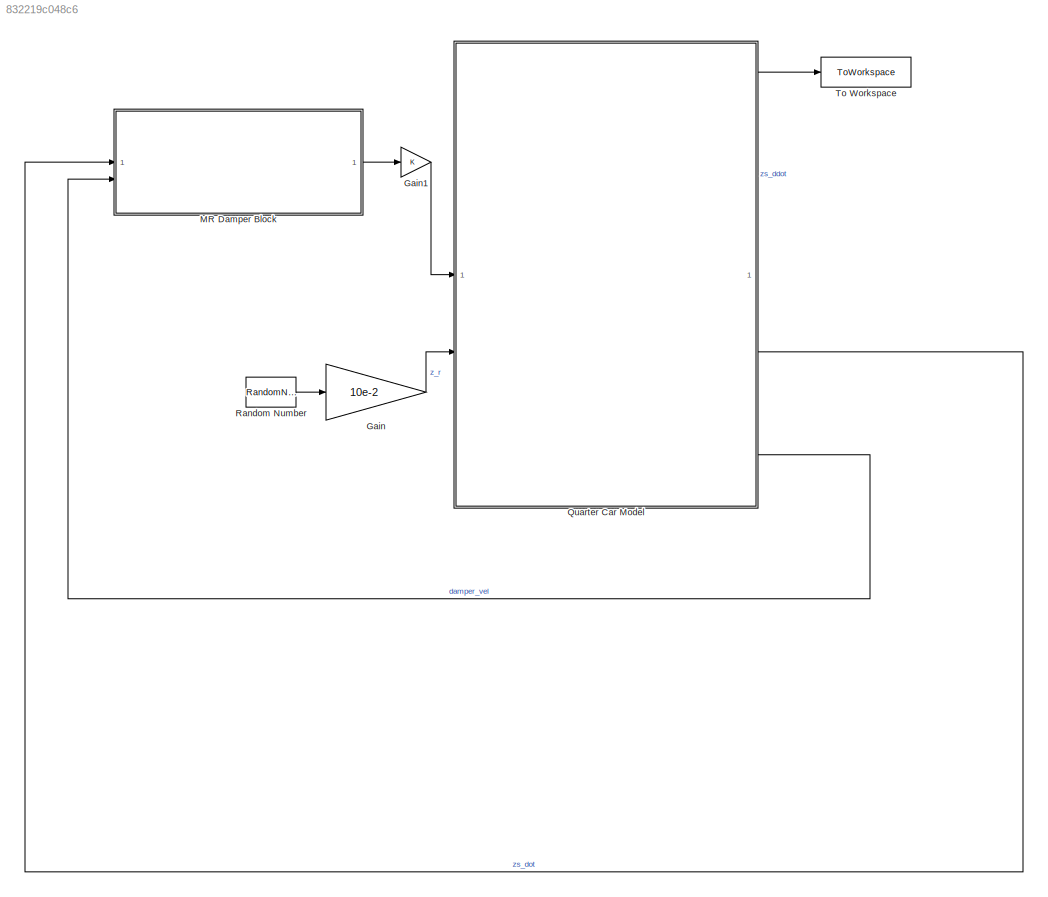
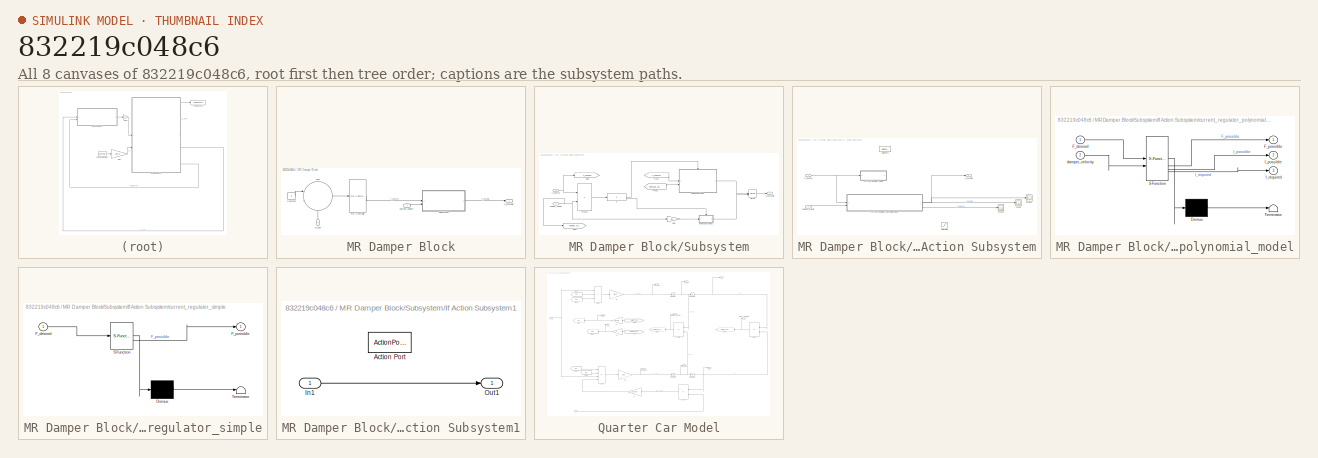
[diagram: thumbnail index - all 8 canvases of the model, root first then tree order]
MODEL slx_832219c048c6
KIND model
CONFIG AbsTol = auto
CONFIG EnableMultiTasking = off
CONFIG FixedStep = auto
CONFIG MaxStep = auto
CONFIG MinStep = auto
CONFIG RelTol = 1e-3
CONFIG SampleTimeConstraint = Unconstrained
CONFIG SolverName = ode1be
CONFIG StartTime = 0.0
CONFIG StopTime = 10
BLOCK [Gain] Gain
  Gain = 10e-2
BLOCK [Gain] Gain1
BLOCK [SubSystem] MR Damper Block
BLOCK [Constant] MR Damper Block/Constant
  Value = 0
BLOCK [Outport] MR Damper Block/F_possoble
BLOCK [Reference] MR Damper Block/PID Controller  REF=slpidlib/PID Controller
  LibrarySourceBlock = simulink/Continuous/PID Controller
  SourceBlock = slpidlib/PID Controller
  SourceType = PID 1dof
BLOCK [SubSystem] MR Damper Block/Subsystem
BLOCK [Inport] MR Damper Block/Subsystem/F_desired
BLOCK [Outport] MR Damper Block/Subsystem/F_possoble
BLOCK [From] MR Damper Block/Subsystem/From
  GotoTag = F_desired
BLOCK [From] MR Damper Block/Subsystem/From1
  GotoTag = damper_velocity
BLOCK [Gain] MR Damper Block/Subsystem/Gain
  Gain = 50
BLOCK [Goto] MR Damper Block/Subsystem/Goto
  GotoTag = F_desired
BLOCK [Goto] MR Damper Block/Subsystem/Goto1
  GotoTag = damper_velocity
BLOCK [If] MR Damper Block/Subsystem/If
BLOCK [SubSystem] MR Damper Block/Subsystem/If Action Subsystem
  TreatAsAtomicUnit = on
BLOCK [ActionPort] MR Damper Block/Subsystem/If Action Subsystem/Action Port
  ActionPortLabel = if(u1 > 0)
BLOCK [Inport] MR Damper Block/Subsystem/If Action Subsystem/F_desired
BLOCK [Outport] MR Damper Block/Subsystem/If Action Subsystem/F_possible
BLOCK [Saturate] MR Damper Block/Subsystem/If Action Subsystem/Saturation
  LowerLimit = -2000
  UpperLimit = 2000
BLOCK [Scope] MR Damper Block/Subsystem/If Action Subsystem/Scope
  Floating = off
  NumInputPorts = 1
  ScopeSpecificationString = Simulink.scopes.TimeScopeBlockCfg('CurrentConfiguration', extmgr.ConfigurationSet(extmgr.Configuration('Core','General UI',true),extmgr.Configuration('Core','Source UI',true),extmgr.Configuration('Sources','WiredSimulink',true),extmgr.Configuration('Visuals','Time Domain',true,'SerializedDisplays',{struct('MinYLimReal','-0.06229','MaxYLimReal','0.56248','YLabelReal','','MinYLimMag','0.00000','MaxY...<+1389ch>
BLOCK [Scope] MR Damper Block/Subsystem/If Action Subsystem/Scope1
  Floating = off
  NumInputPorts = 1
  ScopeSpecificationString = Simulink.scopes.TimeScopeBlockCfg('CurrentConfiguration', extmgr.ConfigurationSet(extmgr.Configuration('Core','General UI',true),extmgr.Configuration('Core','Source UI',true),extmgr.Configuration('Sources','WiredSimulink',true,'DataLoggingVariableName','ScopeData1'),extmgr.Configuration('Visuals','Time Domain',true,'SerializedDisplays',{struct('MinYLimReal','-9771.5132','MaxYLimReal','10644.41896'...<+1457ch>
BLOCK [Scope] MR Damper Block/Subsystem/If Action Subsystem/Scope2
  Floating = off
  NumInputPorts = 1
  ScopeSpecificationString = Simulink.scopes.TimeScopeBlockCfg('CurrentConfiguration', extmgr.ConfigurationSet(extmgr.Configuration('Core','General UI',true),extmgr.Configuration('Core','Source UI',true),extmgr.Configuration('Sources','WiredSimulink',true,'DataLoggingVariableName','ScopeData2'),extmgr.Configuration('Visuals','Time Domain',true,'SerializedDisplays',{struct('MinYLimReal','-2.93128','MaxYLimReal','26.38331','YLa...<+1433ch>
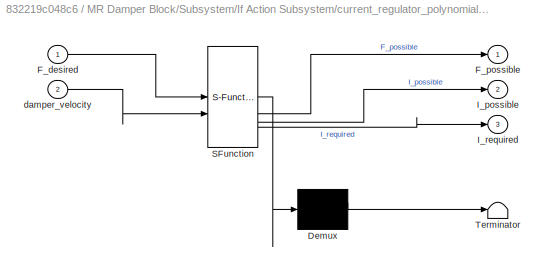
BLOCK [SubSystem] MR Damper Block/Subsystem/If Action Subsystem/current_regulator_polynomial_model
  ErrorFcn = Stateflow.Translate.translate
  LibrarySourceBlock = simulink/User-Defined\nFunctions/MATLAB Function
  PermitHierarchicalResolution = ExplicitOnly
  SFBlockType = MATLAB Function
  TreatAsAtomicUnit = on
BLOCK [Demux] MR Damper Block/Subsystem/If Action Subsystem/current_regulator_polynomial_model/ Demux 
  Outputs = 1
BLOCK [S-Function] MR Damper Block/Subsystem/If Action Subsystem/current_regulator_polynomial_model/ SFunction 
  EnableBusSupport = on
  FunctionName = sf_sfun
  PortCounts = [2 4]
  SFcnIsStateOwnerBlock = off
  SFunctionDeploymentMode = off
  Tag = Stateflow S-Function 1
BLOCK [Terminator] MR Damper Block/Subsystem/If Action Subsystem/current_regulator_polynomial_model/ Terminator 
BLOCK [Inport] MR Damper Block/Subsystem/If Action Subsystem/current_regulator_polynomial_model/F_desired
BLOCK [Outport] MR Damper Block/Subsystem/If Action Subsystem/current_regulator_polynomial_model/F_possible
BLOCK [Outport] MR Damper Block/Subsystem/If Action Subsystem/current_regulator_polynomial_model/I_possible
  Port = 2
BLOCK [Outport] MR Damper Block/Subsystem/If Action Subsystem/current_regulator_polynomial_model/I_required
  Port = 3
BLOCK [Inport] MR Damper Block/Subsystem/If Action Subsystem/current_regulator_polynomial_model/damper_velocity
  Port = 2
BLOCK [SubSystem] MR Damper Block/Subsystem/If Action Subsystem/current_regulator_simple
  ErrorFcn = Stateflow.Translate.translate
  LibrarySourceBlock = simulink/User-Defined\nFunctions/MATLAB Function
  PermitHierarchicalResolution = ExplicitOnly
  SFBlockType = MATLAB Function
  TreatAsAtomicUnit = on
BLOCK [Demux] MR Damper Block/Subsystem/If Action Subsystem/current_regulator_simple/ Demux 
  Outputs = 1
BLOCK [S-Function] MR Damper Block/Subsystem/If Action Subsystem/current_regulator_simple/ SFunction 
  EnableBusSupport = on
  FunctionName = sf_sfun
  PortCounts = [1 2]
  SFcnIsStateOwnerBlock = off
  SFunctionDeploymentMode = off
  Tag = Stateflow S-Function 2
BLOCK [Terminator] MR Damper Block/Subsystem/If Action Subsystem/current_regulator_simple/ Terminator 
BLOCK [Inport] MR Damper Block/Subsystem/If Action Subsystem/current_regulator_simple/F_desired
BLOCK [Outport] MR Damper Block/Subsystem/If Action Subsystem/current_regulator_simple/F_possible
BLOCK [Inport] MR Damper Block/Subsystem/If Action Subsystem/damper_velocity
  Port = 2
BLOCK [SubSystem] MR Damper Block/Subsystem/If Action Subsystem1
  TreatAsAtomicUnit = on
BLOCK [ActionPort] MR Damper Block/Subsystem/If Action Subsystem1/Action Port
  ActionPortLabel = else
BLOCK [Inport] MR Damper Block/Subsystem/If Action Subsystem1/In1
BLOCK [Outport] MR Damper Block/Subsystem/If Action Subsystem1/Out1
BLOCK [Merge] MR Damper Block/Subsystem/Merge
BLOCK [Product] MR Damper Block/Subsystem/Product
BLOCK [Inport] MR Damper Block/Subsystem/damper_velocity
  Port = 2
BLOCK [Sum] MR Damper Block/Sum
  Inputs = |+-
BLOCK [Inport] MR Damper Block/damper_velocity
  Port = 2
BLOCK [Inport] MR Damper Block/zs_dot
  NameLocation = right
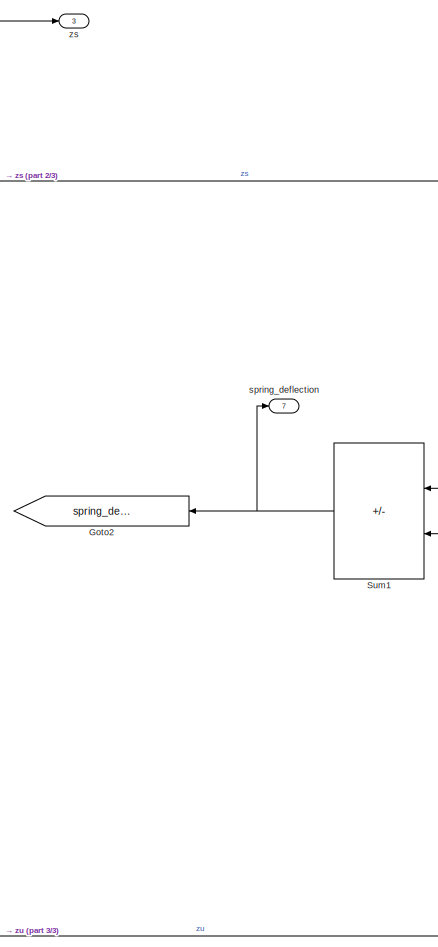
[diagram: Quarter Car Model - part 1/3, middle right region]
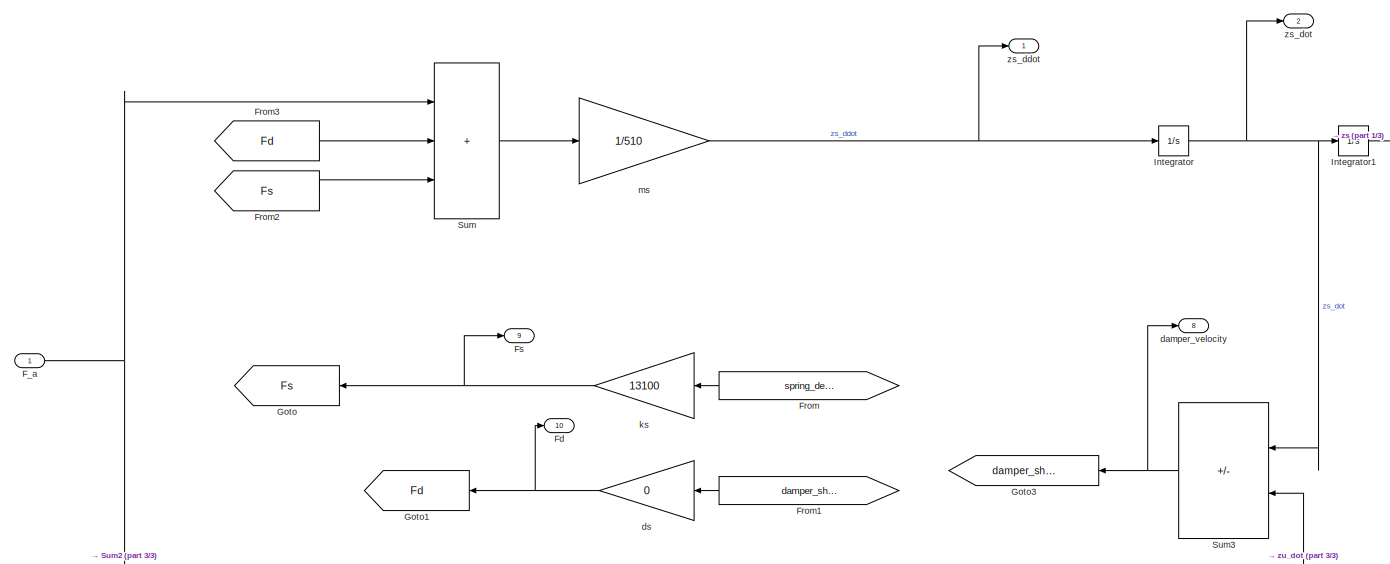
[diagram: Quarter Car Model - part 2/3, top center region]
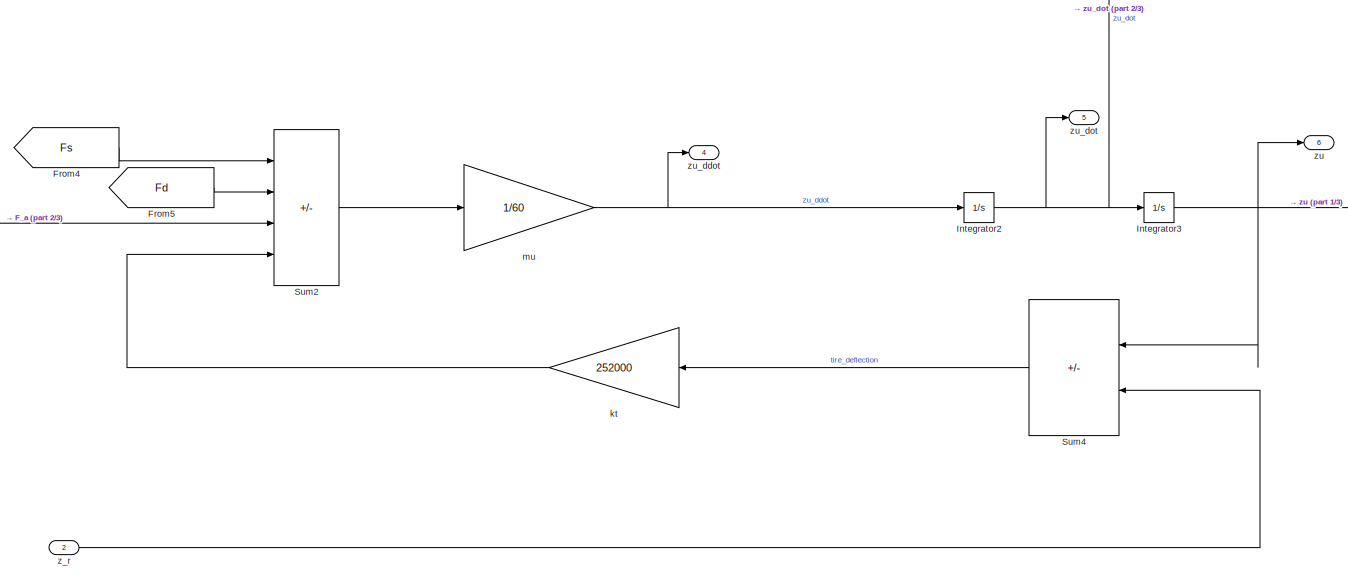
[diagram: Quarter Car Model - part 3/3, bottom center region]
BLOCK [SubSystem] Quarter Car Model
BLOCK [Inport] Quarter Car Model/F_a
BLOCK [Outport] Quarter Car Model/Fd
  Port = 10
BLOCK [From] Quarter Car Model/From
  GotoTag = spring_deflection
  NameLocation = top
BLOCK [From] Quarter Car Model/From1
  GotoTag = damper_shaft_velocity
  NameLocation = top
BLOCK [From] Quarter Car Model/From2
  GotoTag = Fs
BLOCK [From] Quarter Car Model/From3
  GotoTag = Fd
  NameLocation = top
BLOCK [From] Quarter Car Model/From4
  GotoTag = Fs
BLOCK [From] Quarter Car Model/From5
  GotoTag = Fd
  NameLocation = top
BLOCK [Outport] Quarter Car Model/Fs
  Port = 9
BLOCK [Goto] Quarter Car Model/Goto
  GotoTag = Fs
  NameLocation = top
BLOCK [Goto] Quarter Car Model/Goto1
  GotoTag = Fd
  NameLocation = top
BLOCK [Goto] Quarter Car Model/Goto2
  GotoTag = spring_deflection
  NameLocation = top
BLOCK [Goto] Quarter Car Model/Goto3
  GotoTag = damper_shaft_velocity
  NameLocation = top
BLOCK [Integrator] Quarter Car Model/Integrator
BLOCK [Integrator] Quarter Car Model/Integrator1
BLOCK [Integrator] Quarter Car Model/Integrator2
BLOCK [Integrator] Quarter Car Model/Integrator3
BLOCK [Sum] Quarter Car Model/Sum
  IconShape = rectangular
  Inputs = +++
BLOCK [Sum] Quarter Car Model/Sum1
  IconShape = rectangular
  Inputs = |-+
  NameLocation = top
BLOCK [Sum] Quarter Car Model/Sum2
  IconShape = rectangular
  Inputs = ---+
BLOCK [Sum] Quarter Car Model/Sum3
  IconShape = rectangular
  Inputs = |-+
  NameLocation = top
BLOCK [Sum] Quarter Car Model/Sum4
  IconShape = rectangular
  Inputs = |-+
  NameLocation = top
BLOCK [Outport] Quarter Car Model/damper_velocity
  Port = 8
BLOCK [Gain] Quarter Car Model/ds
  Gain = 0
  NameLocation = top
BLOCK [Gain] Quarter Car Model/ks
  Gain = 13100
  NameLocation = top
BLOCK [Gain] Quarter Car Model/kt
  Gain = 252000
  NameLocation = top
BLOCK [Gain] Quarter Car Model/ms
  Gain = 1/510
BLOCK [Gain] Quarter Car Model/mu
  Gain = 1/60
BLOCK [Outport] Quarter Car Model/spring_deflection
  Port = 7
BLOCK [Inport] Quarter Car Model/z_r
  Port = 2
BLOCK [Outport] Quarter Car Model/zs
  Port = 3
BLOCK [Outport] Quarter Car Model/zs_ddot
BLOCK [Outport] Quarter Car Model/zs_dot
  Port = 2
BLOCK [Outport] Quarter Car Model/zu
  Port = 6
BLOCK [Outport] Quarter Car Model/zu_ddot
  Port = 4
BLOCK [Outport] Quarter Car Model/zu_dot
  Port = 5
BLOCK [RandomNumber] Random Number
  SampleTime = 0.01
BLOCK [ToWorkspace] To Workspace
  FixptAsFi = on
  MaxDataPoints = inf
  SampleTime = -1
  SaveFormat = Timeseries
  VariableName = acc
LINE Gain1:1 -> Quarter Car Model:1
LINE Gain:1 -> Quarter Car Model:2
LINE MR Damper Block/Constant:1 -> MR Damper Block/Sum:1
LINE MR Damper Block/PID Controller:1 -> MR Damper Block/Subsystem:1
NET MR Damper Block/Subsystem/F_desired:1 -> MR Damper Block/Subsystem/Goto:1, MR Damper Block/Subsystem/Product:1
LINE MR Damper Block/Subsystem/From1:1 -> MR Damper Block/Subsystem/If Action Subsystem:2
LINE MR Damper Block/Subsystem/From:1 -> MR Damper Block/Subsystem/If Action Subsystem:1
LINE MR Damper Block/Subsystem/Gain:1 -> MR Damper Block/Subsystem/If Action Subsystem1:1
NET MR Damper Block/Subsystem/If Action Subsystem/F_desired:1 -> MR Damper Block/Subsystem/If Action Subsystem/current_regulator_polynomial_model:1, MR Damper Block/Subsystem/If Action Subsystem/current_regulator_simple:1
NET MR Damper Block/Subsystem/If Action Subsystem/current_regulator_polynomial_model:1 -> MR Damper Block/Subsystem/If Action Subsystem/F_possible:1, MR Damper Block/Subsystem/If Action Subsystem/Scope1:1
LINE MR Damper Block/Subsystem/If Action Subsystem/current_regulator_polynomial_model:2 -> MR Damper Block/Subsystem/If Action Subsystem/Scope:1
LINE MR Damper Block/Subsystem/If Action Subsystem/current_regulator_polynomial_model:3 -> MR Damper Block/Subsystem/If Action Subsystem/Scope2:1
LINE MR Damper Block/Subsystem/If Action Subsystem/damper_velocity:1 -> MR Damper Block/Subsystem/If Action Subsystem/current_regulator_polynomial_model:2
LINE MR Damper Block/Subsystem/If Action Subsystem1/In1:1 -> MR Damper Block/Subsystem/If Action Subsystem1/Out1:1
LINE MR Damper Block/Subsystem/If Action Subsystem1:1 -> MR Damper Block/Subsystem/Merge:2
LINE MR Damper Block/Subsystem/If Action Subsystem:1 -> MR Damper Block/Subsystem/Merge:1
LINE MR Damper Block/Subsystem/If:1 -> MR Damper Block/Subsystem/If Action Subsystem:ifaction
LINE MR Damper Block/Subsystem/If:2 -> MR Damper Block/Subsystem/If Action Subsystem1:ifaction
LINE MR Damper Block/Subsystem/Merge:1 -> MR Damper Block/Subsystem/F_possoble:1
LINE MR Damper Block/Subsystem/Product:1 -> MR Damper Block/Subsystem/If:1
NET MR Damper Block/Subsystem/damper_velocity:1 -> MR Damper Block/Subsystem/Gain:1, MR Damper Block/Subsystem/Goto1:1, MR Damper Block/Subsystem/Product:2
LINE MR Damper Block/Subsystem:1 -> MR Damper Block/F_possoble:1
LINE MR Damper Block/Sum:1 -> MR Damper Block/PID Controller:1
LINE MR Damper Block/damper_velocity:1 -> MR Damper Block/Subsystem:2
LINE MR Damper Block/zs_dot:1 -> MR Damper Block/Sum:2
LINE MR Damper Block:1 -> Gain1:1
NET Quarter Car Model/F_a:1 -> Quarter Car Model/Sum2:3, Quarter Car Model/Sum:1
LINE Quarter Car Model/From1:1 -> Quarter Car Model/ds:1
LINE Quarter Car Model/From2:1 -> Quarter Car Model/Sum:3
LINE Quarter Car Model/From3:1 -> Quarter Car Model/Sum:2
LINE Quarter Car Model/From4:1 -> Quarter Car Model/Sum2:1
LINE Quarter Car Model/From5:1 -> Quarter Car Model/Sum2:2
LINE Quarter Car Model/From:1 -> Quarter Car Model/ks:1
NET Quarter Car Model/Integrator1:1 -> Quarter Car Model/Sum1:1, Quarter Car Model/zs:1
NET Quarter Car Model/Integrator2:1 -> Quarter Car Model/Integrator3:1, Quarter Car Model/Sum3:2, Quarter Car Model/zu_dot:1
NET Quarter Car Model/Integrator3:1 -> Quarter Car Model/Sum1:2, Quarter Car Model/Sum4:1, Quarter Car Model/zu:1
NET Quarter Car Model/Integrator:1 -> Quarter Car Model/Integrator1:1, Quarter Car Model/Sum3:1, Quarter Car Model/zs_dot:1
NET Quarter Car Model/Sum1:1 -> Quarter Car Model/Goto2:1, Quarter Car Model/spring_deflection:1
LINE Quarter Car Model/Sum2:1 -> Quarter Car Model/mu:1
NET Quarter Car Model/Sum3:1 -> Quarter Car Model/Goto3:1, Quarter Car Model/damper_velocity:1
LINE Quarter Car Model/Sum4:1 -> Quarter Car Model/kt:1
LINE Quarter Car Model/Sum:1 -> Quarter Car Model/ms:1
NET Quarter Car Model/ds:1 -> Quarter Car Model/Fd:1, Quarter Car Model/Goto1:1
NET Quarter Car Model/ks:1 -> Quarter Car Model/Fs:1, Quarter Car Model/Goto:1
LINE Quarter Car Model/kt:1 -> Quarter Car Model/Sum2:4
NET Quarter Car Model/ms:1 -> Quarter Car Model/Integrator:1, Quarter Car Model/zs_ddot:1
NET Quarter Car Model/mu:1 -> Quarter Car Model/Integrator2:1, Quarter Car Model/zu_ddot:1
LINE Quarter Car Model/z_r:1 -> Quarter Car Model/Sum4:2
LINE Quarter Car Model:1 -> To Workspace:1
LINE Quarter Car Model:2 -> MR Damper Block:1
LINE Quarter Car Model:8 -> MR Damper Block:2
LINE Random Number:1 -> Gain:1
note: NET lines group one-source signal fan-out (src -> all destinations, sorted); 1:1 wires keep LINE
CHART MR Damper Block/Subsystem/If Action
Subsystem/current_regulator_polynomial_model states=1 transitions=1
  STATE_LABEL 'eML_blk_kernel()'
  STATE_LABEL 'SCRIPT:\nfunction [F_possible, I_possible, I_required] = current_regulator_polynomial_model(F_desired, damper_velocity)\n\n\nv = damper_velocity*1;\nI_max = 0.5;\n\nc0 = -659.4;\nc1 = 8.995;\nc2 = 0.1062;\nc3 = -1.584e-4;\nc4 = -5.908e-6;\nc5 = 1.137e-9;\nc6 = 1.087e-10;\nc7 = 0;\nc8 = 0;\nc9 = 0;\nc10 = 0;\nc11 = 0;\n\n\nI_required = (F_desired)/(1000*(0*c0*v^0 + c1*v^1 + c2*v^2 + c3*v^3 + c4*v^4 + c5*v^5 + c6*v^6 + ...<+287ch>'
CHART MR Damper Block/Subsystem/If Action
Subsystem/current_regulator_simple states=1 transitions=1
  STATE_LABEL 'eML_blk_kernel()'
  STATE_LABEL 'SCRIPT:\nfunction F_possible = current_regulator_simple(F_desired)\n\ncs = 1000; % N/A\n\nI_required = F_desired/cs;\n\nI_max = 3;\n\nif abs(I_required) > I_max\n\n    I_possible = sign(F_desired)*I_max;\n\nelse\n\n    I_possible = I_required;\n\nend\n\nF_possible = I_possible * cs;\n\n\n'
CHART  states=0 transitions=0
CHART  states=0 transitions=0
